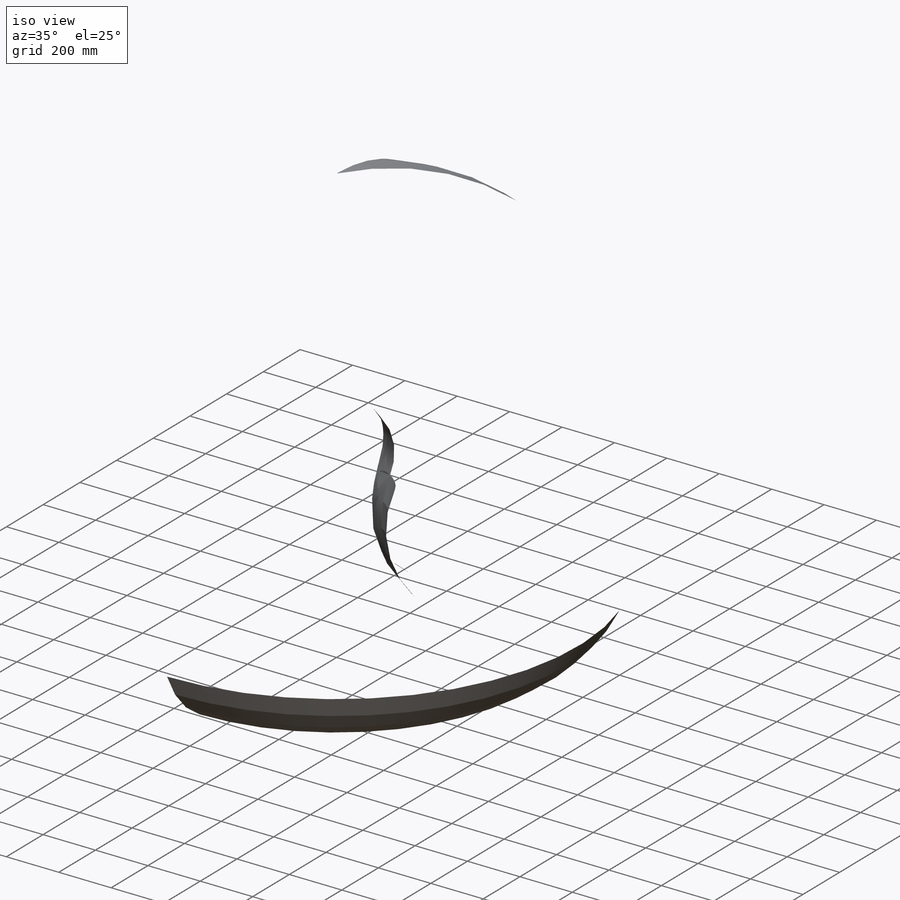
[diagram: iso view]
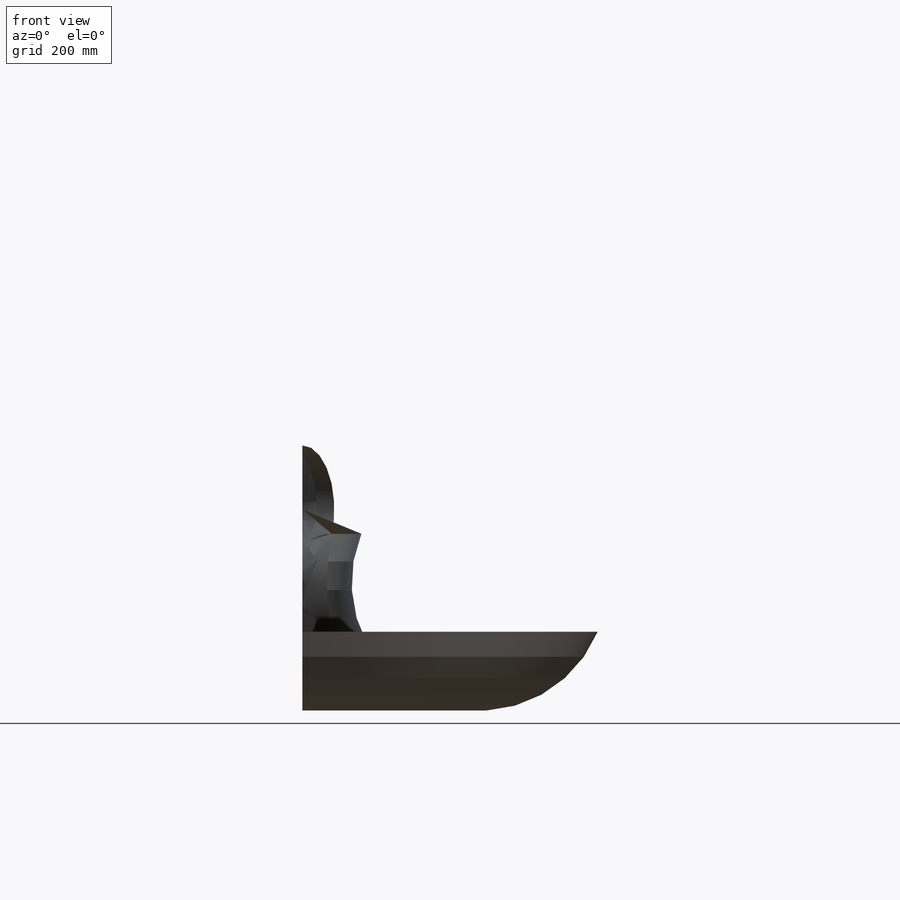
[diagram: front view]
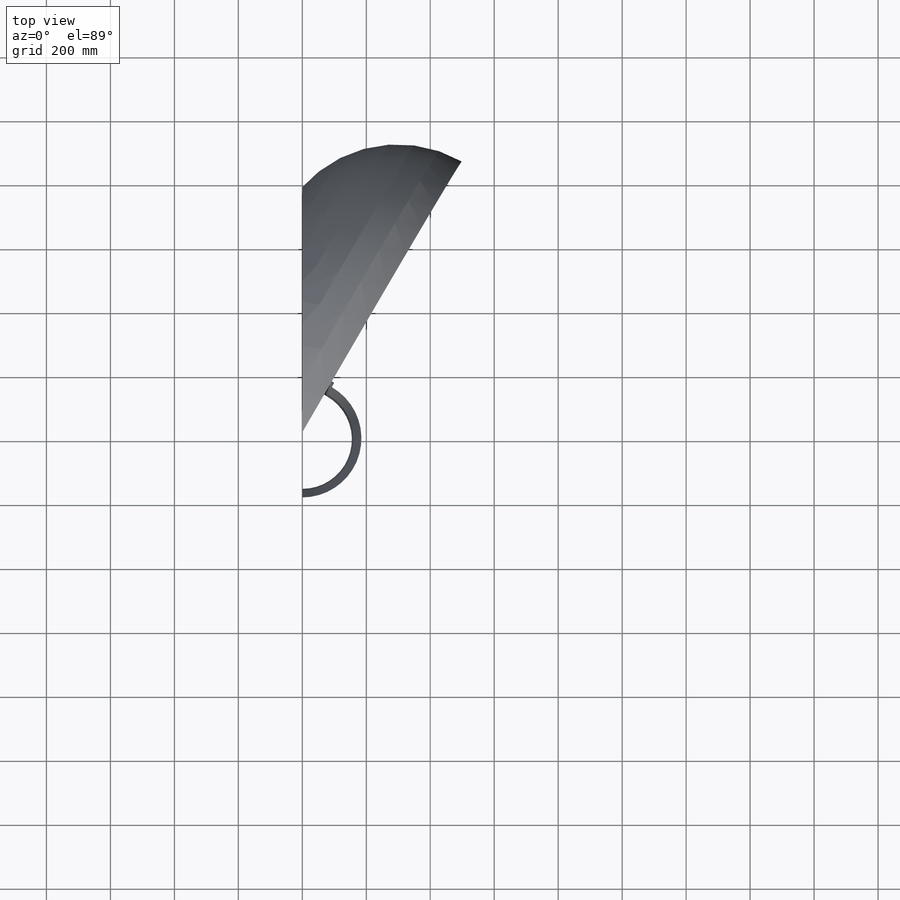
[diagram: top view]
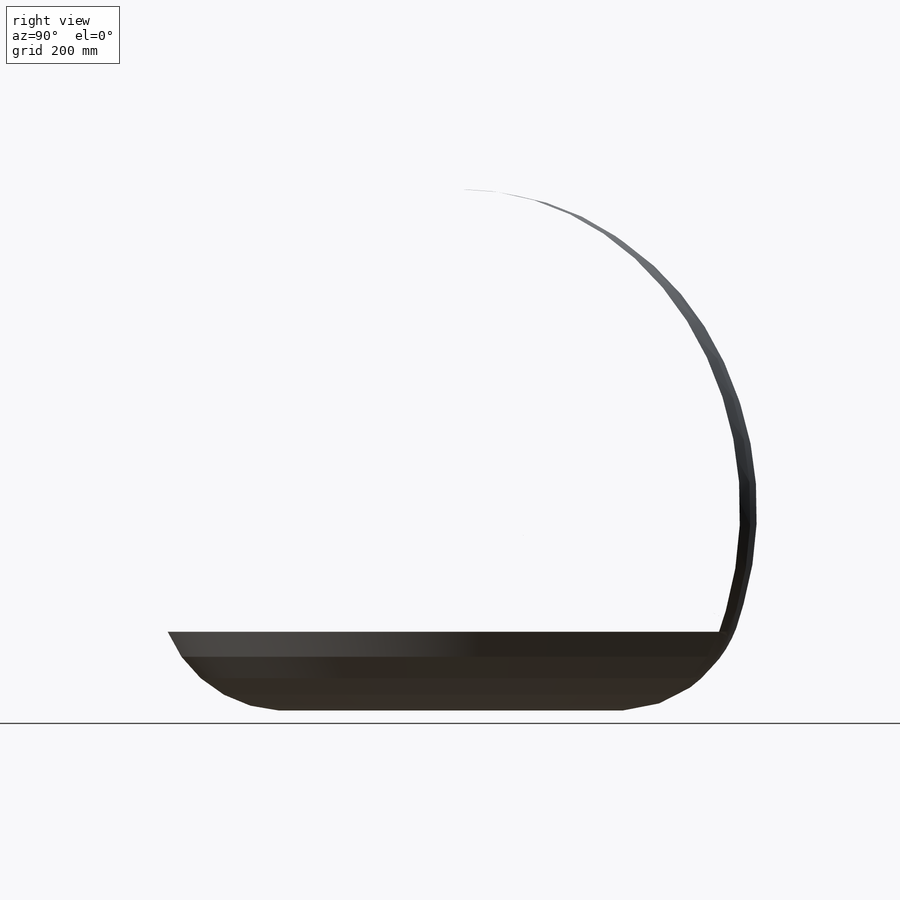
[diagram: right view]
SOLIDWORKS PART (.sldprt)
format: sldprt  version: not decoded by parser v0  size: 200,192 bytes
history: native  units: mm
features: sketch x7, plane x5, revolve x4, cut_extrude x2, material x1, cut_revolve x1 (+8 scaffold rows collapsed)
feature tree (28):
  scaffold x8  (default folders/planes/origin — collapsed)
  material  "Material <not specified>"
  plane  "Plane1"
  plane  "Plane2"
  plane  "Plane3"
  sketch  "Sketch3"  dims[D1=1000.0mm]
  revolve  "Base-Revolve"  Angle=180deg
  sketch  "Sketch4"  dims[c1.D1=939.0mm c2.D1=30.0deg]
  cut_extrude  "Cut-Extrude1"  [1 undecoded]
  plane  "Plane4"
  plane  "Plane5"
  sketch  "Sketch6"  dims[D1=400.0mm]
  revolve  "Boss-Revolve1"  Angle=180deg
  sketch  "Sketch7"  dims[c1.D1=939.0mm c2.D1=70.0deg c2.D2=1000.0mm c3.D2=112.5deg]
  cut_revolve  "Cut-Revolve1"  Angle=360deg
  sketch  "Sketch8"  dims[D1=400.0mm]
  revolve  "Boss-Revolve2"  Angle=150deg
  sketch  "Sketch11"
  revolve  "Revolve1"  Angle=90deg
  sketch  "Sketch10"
  cut_extrude  "Cut-Extrude2"  [1 undecoded]
decode coverage: 10 of 14 modeling features carry decoded parameters
note: 2 parameter values undecoded
note: suppression state not decoded; provenance and decode notes live in map.json
